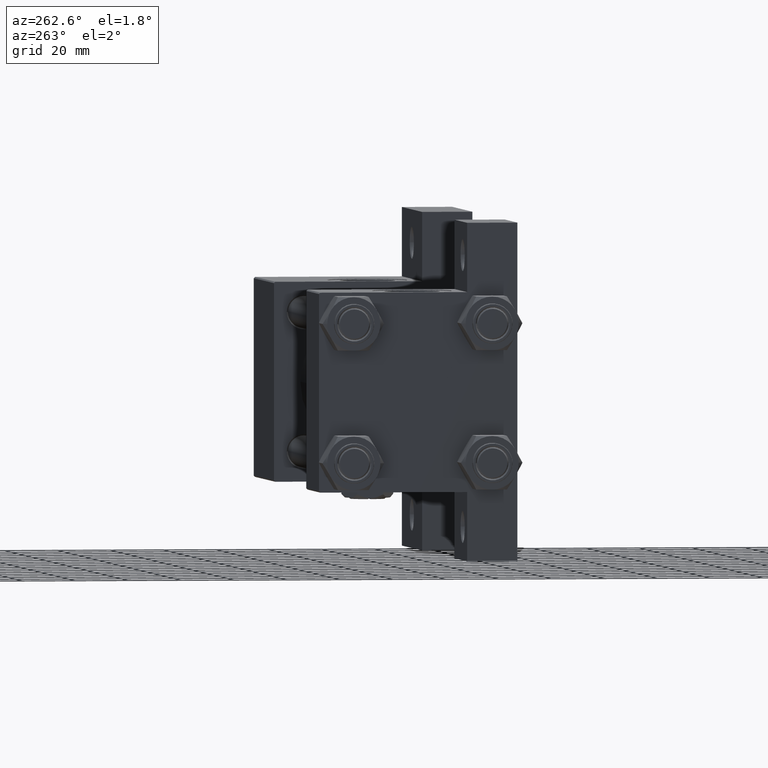
[diagram: clean part render]
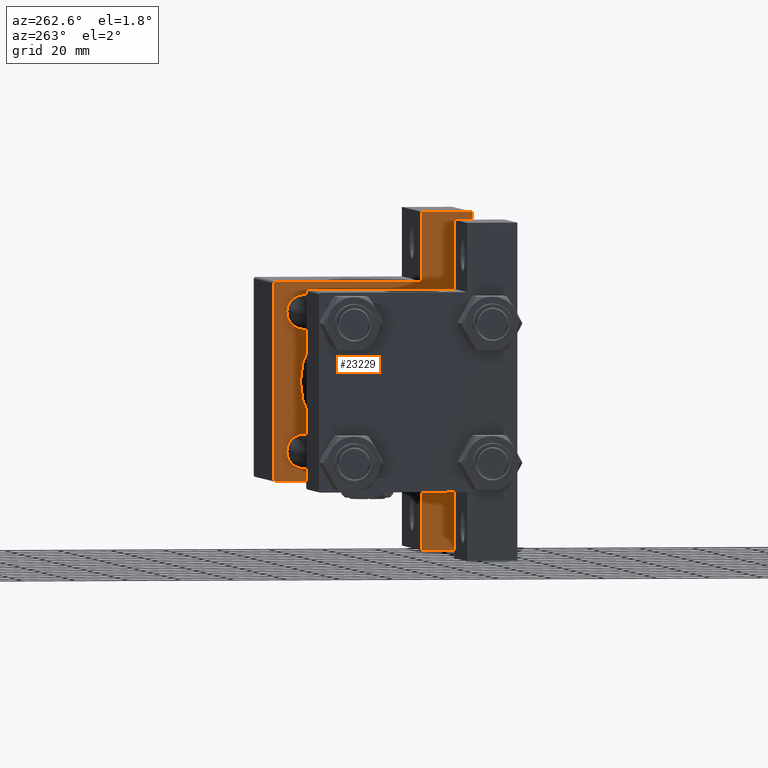
[diagram: same view with one face highlighted and labeled with its STEP entity id]
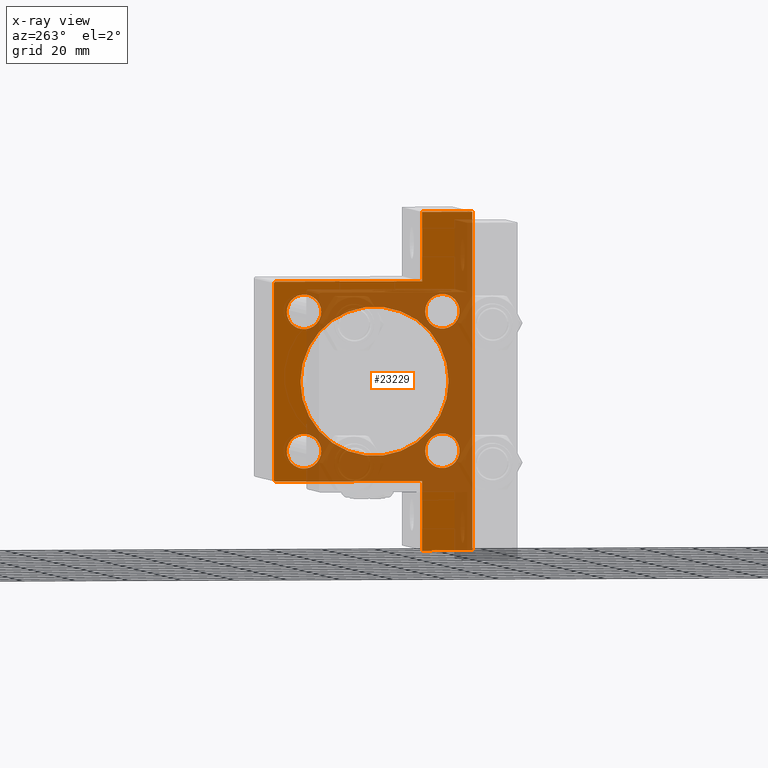
[diagram: x-ray of the same camera — body ghosted, the highlighted face saturated]
A machine part, auxiliary view. The second image highlights one B-rep face of the part: STEP entity #23229.
The next image is the same camera in x-ray: the body ghosted, the highlighted face saturated — about 59% of this face is hidden behind the body in this view.
In plain terms, the highlighted planar face has unit normal (-1, 0, 0).
Its self-contained STEP definition (entity closure, byte-faithful):
#57 = DIRECTION ( 'NONE',  ( 0.000000000000000000, 0.000000000000000000, 1.000000000000000000 ) ) ;
#202 = ORIENTED_EDGE ( 'NONE', *, *, #26790, .F. ) ;
#252 = AXIS2_PLACEMENT_3D ( 'NONE', #21276, #17544, #2841 ) ;
#1031 = VERTEX_POINT ( 'NONE', #8952 ) ;
#1429 = FACE_BOUND ( 'NONE', #32800, .T. ) ;
#1834 = ORIENTED_EDGE ( 'NONE', *, *, #48615, .T. ) ;
#1908 = FACE_OUTER_BOUND ( 'NONE', #23414, .T. ) ;
#1976 = ORIENTED_EDGE ( 'NONE', *, *, #3381, .T. ) ;
#2163 = FACE_BOUND ( 'NONE', #17680, .T. ) ;
#2269 = VERTEX_POINT ( 'NONE', #16180 ) ;
#2392 = CARTESIAN_POINT ( 'NONE',  ( 131.0000000000000000, -26.14999999999999147, 19.65000000000000213 ) ) ;
#2670 = CARTESIAN_POINT ( 'NONE',  ( 131.0000000000000000, -37.24999999999997158, 37.24999999999997158 ) ) ;
#2841 = DIRECTION ( 'NONE',  ( 0.000000000000000000, 0.000000000000000000, 1.000000000000000000 ) ) ;
#2918 = CARTESIAN_POINT ( 'NONE',  ( 131.0000000000000000, 26.14999999999999858, -26.15000000000000213 ) ) ;
#2936 = ORIENTED_EDGE ( 'NONE', *, *, #4487, .T. ) ;
#3381 = EDGE_CURVE ( 'NONE', #7767, #22756, #24349, .T. ) ;
#3971 = LINE ( 'NONE', #16162, #42649 ) ;
#4198 = ORIENTED_EDGE ( 'NONE', *, *, #19720, .T. ) ;
#4344 = CARTESIAN_POINT ( 'NONE',  ( 131.0000000000000000, 37.50000000000000000, 37.49999999999999289 ) ) ;
#4413 = EDGE_CURVE ( 'NONE', #35265, #24072, #14090, .T. ) ;
#4417 = CARTESIAN_POINT ( 'NONE',  ( 131.0000000000000000, -37.50000000000000000, 37.49999999999997868 ) ) ;
#4487 = EDGE_CURVE ( 'NONE', #19738, #45671, #42717, .T. ) ;
#4908 = FACE_BOUND ( 'NONE', #9204, .T. ) ;
#5006 = DIRECTION ( 'NONE',  ( 1.000000000000000000, 0.000000000000000000, -0.000000000000000000 ) ) ;
#5155 = PLANE ( 'NONE',  #24089 ) ;
#5405 = DIRECTION ( 'NONE',  ( -1.000000000000000000, -0.000000000000000000, 0.000000000000000000 ) ) ;
#5729 = CARTESIAN_POINT ( 'NONE',  ( 131.0000000000000000, -63.50000000000000000, -18.50000000000000000 ) ) ;
#5898 = FACE_BOUND ( 'NONE', #40807, .T. ) ;
#6222 = CIRCLE ( 'NONE', #34058, 6.500000000000008882 ) ;
#6349 = ORIENTED_EDGE ( 'NONE', *, *, #7235, .T. ) ;
#6705 = CARTESIAN_POINT ( 'NONE',  ( 131.0000000000000000, 37.50000000000000000, 37.49999999999999289 ) ) ;
#6801 = CARTESIAN_POINT ( 'NONE',  ( 131.0000000000000284, 63.49999999999997158, -37.50000000000000000 ) ) ;
#6860 = VECTOR ( 'NONE', #48558, 1000.000000000000000 ) ;
#6882 = CARTESIAN_POINT ( 'NONE',  ( 131.0000000000000000, 37.50000000000000000, -37.50000000000000000 ) ) ;
#6994 = VERTEX_POINT ( 'NONE', #16389 ) ;
#7035 = DIRECTION ( 'NONE',  ( 1.000000000000000000, 0.000000000000000000, -0.000000000000000000 ) ) ;
#7183 = LINE ( 'NONE', #6705, #6860 ) ;
#7235 = EDGE_CURVE ( 'NONE', #17836, #42772, #6222, .T. ) ;
#7371 = DIRECTION ( 'NONE',  ( 1.000000000000000000, 0.000000000000000000, -0.000000000000000000 ) ) ;
#7598 = AXIS2_PLACEMENT_3D ( 'NONE', #19607, #30599, #22872 ) ;
#7767 = VERTEX_POINT ( 'NONE', #19743 ) ;
#7974 = ORIENTED_EDGE ( 'NONE', *, *, #36404, .T. ) ;
#8674 = DIRECTION ( 'NONE',  ( 0.000000000000000000, 0.7071067811865474617, -0.7071067811865474617 ) ) ;
#8906 = ORIENTED_EDGE ( 'NONE', *, *, #23233, .T. ) ;
#8952 = CARTESIAN_POINT ( 'NONE',  ( 131.0000000000000000, -63.50000000000000000, -37.50000000000000000 ) ) ;
#9058 = CARTESIAN_POINT ( 'NONE',  ( 131.0000000000000284, 63.49999999999997158, -18.50000000000000000 ) ) ;
#9204 = EDGE_LOOP ( 'NONE', ( #46396, #7974 ) ) ;
#9311 = AXIS2_PLACEMENT_3D ( 'NONE', #21846, #37282, #26303 ) ;
#9647 = CARTESIAN_POINT ( 'NONE',  ( 131.0000000000000284, 63.49999999999997158, -18.50000000000000000 ) ) ;
#9723 = CIRCLE ( 'NONE', #18494, 6.499999999999995559 ) ;
#10053 = LINE ( 'NONE', #43912, #29817 ) ;
#10870 = CARTESIAN_POINT ( 'NONE',  ( 131.0000000000000000, -26.14999999999999147, 26.15000000000000924 ) ) ;
#11263 = EDGE_CURVE ( 'NONE', #24072, #35265, #48399, .T. ) ;
#12256 = EDGE_CURVE ( 'NONE', #6994, #33432, #20261, .T. ) ;
#12812 = LINE ( 'NONE', #4344, #41790 ) ;
#13990 = CIRCLE ( 'NONE', #38601, 6.500000000000008882 ) ;
#14090 = CIRCLE ( 'NONE', #9311, 6.500000000000008882 ) ;
#14497 = DIRECTION ( 'NONE',  ( 0.000000000000000000, 0.000000000000000000, 1.000000000000000000 ) ) ;
#14728 = ORIENTED_EDGE ( 'NONE', *, *, #29209, .T. ) ;
#14847 = DIRECTION ( 'NONE',  ( 0.000000000000000000, 0.000000000000000000, 1.000000000000000000 ) ) ;
#14942 = CARTESIAN_POINT ( 'NONE',  ( 131.0000000000000000, -26.14999999999999147, -19.65000000000000213 ) ) ;
#16162 = CARTESIAN_POINT ( 'NONE',  ( 131.0000000000000000, 37.25000000000000000, 37.25000000000000000 ) ) ;
#16180 = CARTESIAN_POINT ( 'NONE',  ( 131.0000000000000000, 37.50000000000000000, 36.99999999999999289 ) ) ;
#16389 = CARTESIAN_POINT ( 'NONE',  ( 131.0000000000000284, 63.49999999999997158, -18.50000000000000000 ) ) ;
#16460 = VECTOR ( 'NONE', #43762, 1000.000000000000114 ) ;
#17457 = VERTEX_POINT ( 'NONE', #5729 ) ;
#17544 = DIRECTION ( 'NONE',  ( 1.000000000000000000, 0.000000000000000000, -0.000000000000000000 ) ) ;
#17587 = VERTEX_POINT ( 'NONE', #46276 ) ;
#17680 = EDGE_LOOP ( 'NONE', ( #47322, #45531 ) ) ;
#17836 = VERTEX_POINT ( 'NONE', #40546 ) ;
#18357 = VERTEX_POINT ( 'NONE', #39573 ) ;
#18494 = AXIS2_PLACEMENT_3D ( 'NONE', #40924, #29969, #32979 ) ;
#18872 = DIRECTION ( 'NONE',  ( 0.000000000000000000, -9.251858538542972814E-17, -1.000000000000000000 ) ) ;
#18941 = ORIENTED_EDGE ( 'NONE', *, *, #33323, .F. ) ;
#19607 = CARTESIAN_POINT ( 'NONE',  ( 131.0000000000000000, 0.000000000000000000, -0.5000000000000004441 ) ) ;
#19720 = EDGE_CURVE ( 'NONE', #31571, #18357, #30481, .T. ) ;
#19738 = VERTEX_POINT ( 'NONE', #32749 ) ;
#19743 = CARTESIAN_POINT ( 'NONE',  ( 131.0000000000000000, -37.50000000000000000, 36.99999999999995026 ) ) ;
#19800 = VERTEX_POINT ( 'NONE', #26237 ) ;
#20041 = CARTESIAN_POINT ( 'NONE',  ( 131.0000000000000000, 26.14999999999999858, -32.65000000000001279 ) ) ;
#20261 = LINE ( 'NONE', #9058, #42858 ) ;
#20439 = CARTESIAN_POINT ( 'NONE',  ( 131.0000000000000000, -26.14999999999999147, -26.15000000000000924 ) ) ;
#20675 = VECTOR ( 'NONE', #26549, 1000.000000000000000 ) ;
#20938 = DIRECTION ( 'NONE',  ( 0.000000000000000000, 0.000000000000000000, 1.000000000000000000 ) ) ;
#21276 = CARTESIAN_POINT ( 'NONE',  ( 131.0000000000000000, 26.14999999999999858, 26.15000000000000213 ) ) ;
#21607 = EDGE_CURVE ( 'NONE', #18357, #31571, #9723, .T. ) ;
#21627 = CARTESIAN_POINT ( 'NONE',  ( 131.0000000000000000, 0.000000000000000000, 27.50000000000000000 ) ) ;
#21671 = ORIENTED_EDGE ( 'NONE', *, *, #37242, .F. ) ;
#21846 = CARTESIAN_POINT ( 'NONE',  ( 131.0000000000000000, -26.14999999999999147, -26.15000000000000924 ) ) ;
#22024 = VECTOR ( 'NONE', #42424, 1000.000000000000000 ) ;
#22613 = DIRECTION ( 'NONE',  ( 0.000000000000000000, 0.000000000000000000, -1.000000000000000000 ) ) ;
#22675 = CARTESIAN_POINT ( 'NONE',  ( 131.0000000000000000, -36.99999999999997158, 37.49999999999997868 ) ) ;
#22756 = VERTEX_POINT ( 'NONE', #22675 ) ;
#22823 = AXIS2_PLACEMENT_3D ( 'NONE', #42259, #30583, #22613 ) ;
#22872 = DIRECTION ( 'NONE',  ( 0.000000000000000000, 0.000000000000000000, -1.000000000000000000 ) ) ;
#23229 = ADVANCED_FACE ( 'NONE', ( #1429, #5898, #43010, #2163, #4908, #1908 ), #5155, .T. ) ;
#23233 = EDGE_CURVE ( 'NONE', #45148, #6994, #24843, .T. ) ;
#23414 = EDGE_LOOP ( 'NONE', ( #18941, #47439, #43031, #8906, #24936, #1834, #202, #37840, #21671, #1976 ) ) ;
#23639 = AXIS2_PLACEMENT_3D ( 'NONE', #2918, #48969, #14847 ) ;
#24072 = VERTEX_POINT ( 'NONE', #28410 ) ;
#24089 = AXIS2_PLACEMENT_3D ( 'NONE', #28590, #5405, #35801 ) ;
#24349 = LINE ( 'NONE', #2670, #16460 ) ;
#24843 = LINE ( 'NONE', #9647, #39225 ) ;
#24936 = ORIENTED_EDGE ( 'NONE', *, *, #12256, .T. ) ;
#25058 = EDGE_LOOP ( 'NONE', ( #2936, #45207 ) ) ;
#26237 = CARTESIAN_POINT ( 'NONE',  ( 131.0000000000000000, 37.00000000000000000, 37.49999999999999289 ) ) ;
#26303 = DIRECTION ( 'NONE',  ( 0.000000000000000000, 0.000000000000000000, 1.000000000000000000 ) ) ;
#26549 = DIRECTION ( 'NONE',  ( 0.000000000000000000, -1.000000000000000000, 0.000000000000000000 ) ) ;
#26790 = EDGE_CURVE ( 'NONE', #17457, #1031, #10053, .T. ) ;
#26914 = AXIS2_PLACEMENT_3D ( 'NONE', #20439, #5006, #20938 ) ;
#27716 = CARTESIAN_POINT ( 'NONE',  ( 131.0000000000000000, 37.50000000000000000, -18.50000000000000355 ) ) ;
#28410 = CARTESIAN_POINT ( 'NONE',  ( 131.0000000000000000, -26.14999999999999147, -32.65000000000002700 ) ) ;
#28590 = CARTESIAN_POINT ( 'NONE',  ( 131.0000000000000000, 0.000000000000000000, 0.000000000000000000 ) ) ;
#29209 = EDGE_CURVE ( 'NONE', #42772, #17836, #13990, .T. ) ;
#29524 = EDGE_CURVE ( 'NONE', #37920, #41675, #44200, .T. ) ;
#29614 = CARTESIAN_POINT ( 'NONE',  ( 131.0000000000000000, 26.14999999999999858, 32.65000000000000568 ) ) ;
#29817 = VECTOR ( 'NONE', #39938, 1000.000000000000000 ) ;
#29969 = DIRECTION ( 'NONE',  ( 1.000000000000000000, 0.000000000000000000, -0.000000000000000000 ) ) ;
#30451 = CARTESIAN_POINT ( 'NONE',  ( 131.0000000000000000, 26.14999999999999858, -26.15000000000000213 ) ) ;
#30481 = CIRCLE ( 'NONE', #252, 6.499999999999995559 ) ;
#30583 = DIRECTION ( 'NONE',  ( 1.000000000000000000, 0.000000000000000000, 0.000000000000000000 ) ) ;
#30599 = DIRECTION ( 'NONE',  ( 1.000000000000000000, 0.000000000000000000, 0.000000000000000000 ) ) ;
#30801 = CIRCLE ( 'NONE', #22823, 28.00000000000000000 ) ;
#31252 = EDGE_CURVE ( 'NONE', #19800, #2269, #3971, .T. ) ;
#31492 = CARTESIAN_POINT ( 'NONE',  ( 131.0000000000000000, -63.50000000000000000, -18.50000000000000000 ) ) ;
#31571 = VERTEX_POINT ( 'NONE', #29614 ) ;
#32749 = CARTESIAN_POINT ( 'NONE',  ( 131.0000000000000000, 26.14999999999999858, -19.64999999999999503 ) ) ;
#32800 = EDGE_LOOP ( 'NONE', ( #6349, #14728 ) ) ;
#32979 = DIRECTION ( 'NONE',  ( 0.000000000000000000, 0.000000000000000000, 1.000000000000000000 ) ) ;
#33323 = EDGE_CURVE ( 'NONE', #19800, #22756, #12812, .T. ) ;
#33432 = VERTEX_POINT ( 'NONE', #6801 ) ;
#34058 = AXIS2_PLACEMENT_3D ( 'NONE', #10870, #7371, #41019 ) ;
#34810 = EDGE_CURVE ( 'NONE', #2269, #45148, #7183, .T. ) ;
#35265 = VERTEX_POINT ( 'NONE', #14942 ) ;
#35547 = EDGE_CURVE ( 'NONE', #17457, #17587, #46177, .T. ) ;
#35801 = DIRECTION ( 'NONE',  ( 0.000000000000000000, 0.000000000000000000, 1.000000000000000000 ) ) ;
#36404 = EDGE_CURVE ( 'NONE', #41675, #37920, #30801, .T. ) ;
#37242 = EDGE_CURVE ( 'NONE', #7767, #17587, #49023, .T. ) ;
#37282 = DIRECTION ( 'NONE',  ( 1.000000000000000000, 0.000000000000000000, -0.000000000000000000 ) ) ;
#37840 = ORIENTED_EDGE ( 'NONE', *, *, #35547, .T. ) ;
#37920 = VERTEX_POINT ( 'NONE', #21627 ) ;
#38023 = CARTESIAN_POINT ( 'NONE',  ( 131.0000000000000000, 3.429011037612589276E-15, -28.50000000000000000 ) ) ;
#38180 = AXIS2_PLACEMENT_3D ( 'NONE', #30451, #7035, #57 ) ;
#38601 = AXIS2_PLACEMENT_3D ( 'NONE', #48619, #45110, #14497 ) ;
#39225 = VECTOR ( 'NONE', #40024, 1000.000000000000000 ) ;
#39540 = VECTOR ( 'NONE', #18872, 1000.000000000000000 ) ;
#39573 = CARTESIAN_POINT ( 'NONE',  ( 131.0000000000000000, 26.14999999999999858, 19.65000000000000568 ) ) ;
#39697 = DIRECTION ( 'NONE',  ( 0.000000000000000000, 0.000000000000000000, -1.000000000000000000 ) ) ;
#39938 = DIRECTION ( 'NONE',  ( 0.000000000000000000, 0.000000000000000000, -1.000000000000000000 ) ) ;
#40024 = DIRECTION ( 'NONE',  ( 1.067522139062651657E-15, 1.000000000000000000, -0.000000000000000000 ) ) ;
#40546 = CARTESIAN_POINT ( 'NONE',  ( 131.0000000000000000, -26.14999999999999147, 32.65000000000001990 ) ) ;
#40807 = EDGE_LOOP ( 'NONE', ( #4198, #44627 ) ) ;
#40924 = CARTESIAN_POINT ( 'NONE',  ( 131.0000000000000000, 26.14999999999999858, 26.15000000000000213 ) ) ;
#41019 = DIRECTION ( 'NONE',  ( 0.000000000000000000, 0.000000000000000000, 1.000000000000000000 ) ) ;
#41675 = VERTEX_POINT ( 'NONE', #38023 ) ;
#41790 = VECTOR ( 'NONE', #46184, 1000.000000000000000 ) ;
#42259 = CARTESIAN_POINT ( 'NONE',  ( 131.0000000000000000, 0.000000000000000000, -0.5000000000000004441 ) ) ;
#42424 = DIRECTION ( 'NONE',  ( 0.000000000000000000, 1.000000000000000000, 0.000000000000000000 ) ) ;
#42649 = VECTOR ( 'NONE', #8674, 1000.000000000000114 ) ;
#42717 = CIRCLE ( 'NONE', #23639, 6.500000000000008882 ) ;
#42772 = VERTEX_POINT ( 'NONE', #2392 ) ;
#42858 = VECTOR ( 'NONE', #39697, 1000.000000000000000 ) ;
#42937 = CIRCLE ( 'NONE', #38180, 6.500000000000008882 ) ;
#43010 = FACE_BOUND ( 'NONE', #25058, .T. ) ;
#43031 = ORIENTED_EDGE ( 'NONE', *, *, #34810, .T. ) ;
#43145 = EDGE_CURVE ( 'NONE', #45671, #19738, #42937, .T. ) ;
#43762 = DIRECTION ( 'NONE',  ( -0.000000000000000000, 0.7071067811865474617, 0.7071067811865474617 ) ) ;
#43912 = CARTESIAN_POINT ( 'NONE',  ( 131.0000000000000000, -63.50000000000000000, -18.50000000000000000 ) ) ;
#44200 = CIRCLE ( 'NONE', #7598, 28.00000000000000000 ) ;
#44627 = ORIENTED_EDGE ( 'NONE', *, *, #21607, .T. ) ;
#44753 = LINE ( 'NONE', #6882, #20675 ) ;
#45110 = DIRECTION ( 'NONE',  ( 1.000000000000000000, 0.000000000000000000, -0.000000000000000000 ) ) ;
#45148 = VERTEX_POINT ( 'NONE', #27716 ) ;
#45207 = ORIENTED_EDGE ( 'NONE', *, *, #43145, .T. ) ;
#45531 = ORIENTED_EDGE ( 'NONE', *, *, #11263, .T. ) ;
#45671 = VERTEX_POINT ( 'NONE', #20041 ) ;
#46177 = LINE ( 'NONE', #31492, #22024 ) ;
#46184 = DIRECTION ( 'NONE',  ( 0.000000000000000000, -1.000000000000000000, -1.850371707708594316E-16 ) ) ;
#46276 = CARTESIAN_POINT ( 'NONE',  ( 131.0000000000000000, -37.50000000000000000, -18.50000000000000000 ) ) ;
#46396 = ORIENTED_EDGE ( 'NONE', *, *, #29524, .T. ) ;
#47322 = ORIENTED_EDGE ( 'NONE', *, *, #4413, .T. ) ;
#47439 = ORIENTED_EDGE ( 'NONE', *, *, #31252, .T. ) ;
#48399 = CIRCLE ( 'NONE', #26914, 6.500000000000008882 ) ;
#48558 = DIRECTION ( 'NONE',  ( 0.000000000000000000, 0.000000000000000000, -1.000000000000000000 ) ) ;
#48615 = EDGE_CURVE ( 'NONE', #33432, #1031, #44753, .T. ) ;
#48619 = CARTESIAN_POINT ( 'NONE',  ( 131.0000000000000000, -26.14999999999999147, 26.15000000000000924 ) ) ;
#48969 = DIRECTION ( 'NONE',  ( 1.000000000000000000, 0.000000000000000000, -0.000000000000000000 ) ) ;
#49023 = LINE ( 'NONE', #4417, #39540 ) ;